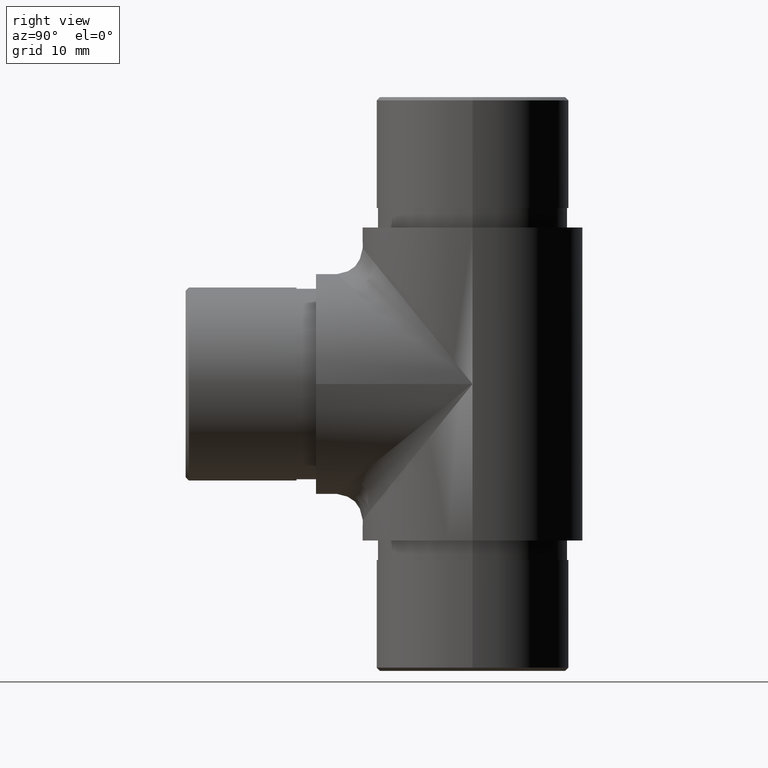
[diagram: clean part render]
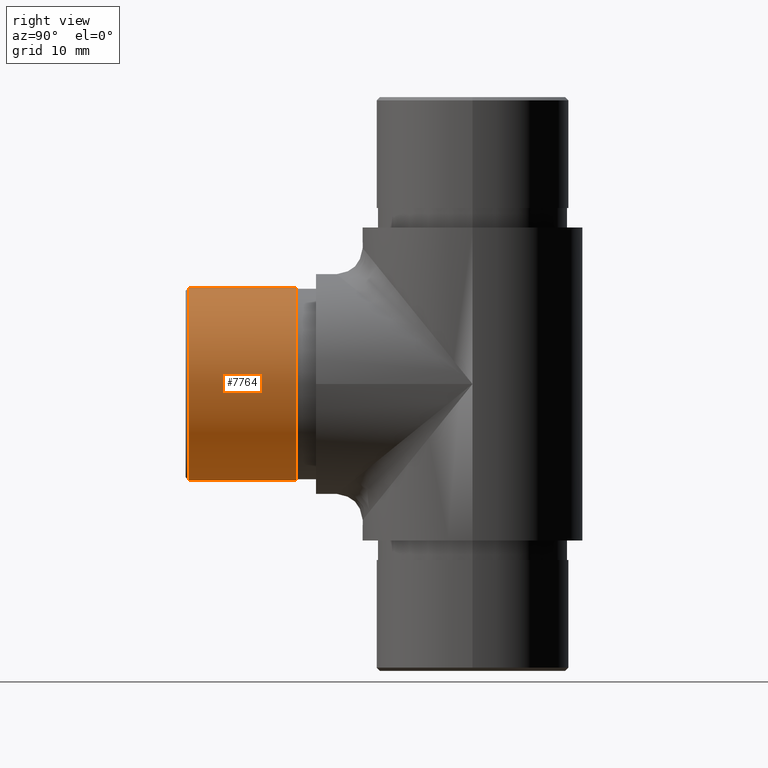
[diagram: same view with one face highlighted and labeled with its STEP entity id]
A machine part, right view. The second image highlights one B-rep face of the part: STEP entity #7764.
In plain terms, the highlighted cylindrical surface (bore or boss wall) has radius 14.8 mm, axis along (-0, 1, -0).
Its self-contained STEP definition (entity closure, byte-faithful):
#231 = CYLINDRICAL_SURFACE ( 'NONE', #10418, 14.79999999999999900 ) ;
#262 = EDGE_CURVE ( 'NONE', #6755, #6755, #1075, .T. ) ;
#308 = CARTESIAN_POINT ( 'NONE',  ( 0.0000000000000000000, 0.5000000000000004400, 0.0000000000000000000 ) ) ;
#1075 = CIRCLE ( 'NONE', #2601, 14.79999999999999900 ) ;
#1374 = ORIENTED_EDGE ( 'NONE', *, *, #262, .T. ) ;
#1829 = DIRECTION ( 'NONE',  ( 0.0000000000000000000, 0.0000000000000000000, -1.000000000000000000 ) ) ;
#2601 = AXIS2_PLACEMENT_3D ( 'NONE', #7219, #5291, #1829 ) ;
#2603 = EDGE_LOOP ( 'NONE', ( #5772 ) ) ;
#2639 = AXIS2_PLACEMENT_3D ( 'NONE', #308, #6582, #11062 ) ;
#3910 = CARTESIAN_POINT ( 'NONE',  ( 0.0000000000000000000, 0.5000000000000004400, -14.79999999999999900 ) ) ;
#4489 = VERTEX_POINT ( 'NONE', #3910 ) ;
#4817 = CARTESIAN_POINT ( 'NONE',  ( 0.0000000000000000000, 17.00000000000000000, -14.79999999999999900 ) ) ;
#4962 = EDGE_CURVE ( 'NONE', #4489, #4489, #7537, .T. ) ;
#5201 = DIRECTION ( 'NONE',  ( -0.0000000000000000000, 1.000000000000000000, -0.0000000000000000000 ) ) ;
#5291 = DIRECTION ( 'NONE',  ( 0.0000000000000000000, -1.000000000000000000, 0.0000000000000000000 ) ) ;
#5772 = ORIENTED_EDGE ( 'NONE', *, *, #4962, .T. ) ;
#6356 = FACE_OUTER_BOUND ( 'NONE', #8950, .T. ) ;
#6582 = DIRECTION ( 'NONE',  ( 0.0000000000000000000, 1.000000000000000000, 0.0000000000000000000 ) ) ;
#6755 = VERTEX_POINT ( 'NONE', #4817 ) ;
#6926 = CARTESIAN_POINT ( 'NONE',  ( 0.0000000000000000000, 0.0000000000000000000, 0.0000000000000000000 ) ) ;
#7219 = CARTESIAN_POINT ( 'NONE',  ( 0.0000000000000000000, 17.00000000000000000, 0.0000000000000000000 ) ) ;
#7537 = CIRCLE ( 'NONE', #2639, 14.79999999999999900 ) ;
#7764 = ADVANCED_FACE ( 'NONE', ( #8757, #6356 ), #231, .T. ) ;
#8757 = FACE_OUTER_BOUND ( 'NONE', #2603, .T. ) ;
#8950 = EDGE_LOOP ( 'NONE', ( #1374 ) ) ;
#10418 = AXIS2_PLACEMENT_3D ( 'NONE', #6926, #5201, #11431 ) ;
#11062 = DIRECTION ( 'NONE',  ( 0.0000000000000000000, 0.0000000000000000000, -1.000000000000000000 ) ) ;
#11431 = DIRECTION ( 'NONE',  ( 0.0000000000000000000, 0.0000000000000000000, 1.000000000000000000 ) ) ;